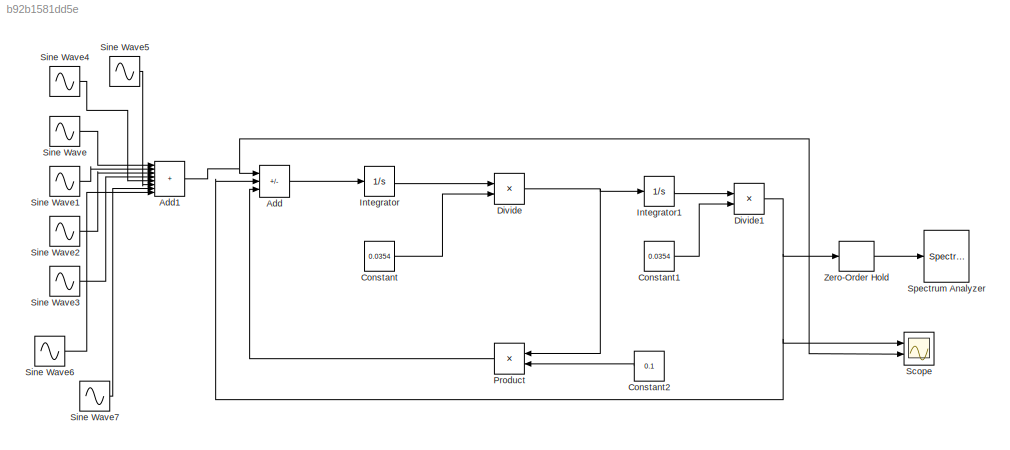
MODEL slx_b92b1581dd5e
KIND model
CONFIG AbsTol = auto
CONFIG EnableMultiTasking = off
CONFIG FixedStep = auto
CONFIG MaxStep = auto
CONFIG MinStep = auto
CONFIG RelTol = 1e-3
CONFIG SampleTimeConstraint = Unconstrained
CONFIG SolverName = VariableStepAuto
CONFIG StartTime = 0.0
CONFIG StopTime = 3
BLOCK [Sum] Add
  IconShape = rectangular
  Inputs = +--
  Ports = [3, 1]
BLOCK [Sum] Add1
  IconShape = rectangular
  Inputs = ++++++++
  Ports = [8, 1]
BLOCK [Constant] Constant
  Value = 0.0354
BLOCK [Constant] Constant1
  Value = 0.0354
BLOCK [Constant] Constant2
  Value = 0.1
BLOCK [Product] Divide
  Inputs = */
  Ports = [2, 1]
BLOCK [Product] Divide1
  Inputs = */
  Ports = [2, 1]
BLOCK [Integrator] Integrator
  Ports = [1, 1]
BLOCK [Integrator] Integrator1
  Ports = [1, 1]
BLOCK [Product] Product
  Ports = [2, 1]
BLOCK [Scope] Scope
  Floating = off
  NumInputPorts = 2
  Ports = [2]
  ScopeSpecificationString = Simulink.scopes.TimeScopeBlockCfg('CurrentConfiguration', extmgr.ConfigurationSet(extmgr.Configuration('Core','General UI',true),extmgr.Configuration('Core','Source UI',true),extmgr.Configuration('Sources','WiredSimulink',true),extmgr.Configuration('Visuals','Time Domain',true,'SerializedDisplays',{struct('MinYLimReal','-1.25','MaxYLimReal','1.25','YLabelReal','','MinYLimMag','0.00000','MaxYLimMag...<+1706ch>
BLOCK [Sin] Sine Wave
  Amplitude = 4/(pi*1)
  Frequency = 64*pi
  Ports = [0, 1]
  SampleTime = 0
BLOCK [Sin] Sine Wave1
  Amplitude = 4/(pi*3)
  Frequency = 192*pi
  Ports = [0, 1]
  SampleTime = 0
BLOCK [Sin] Sine Wave2
  Amplitude = 4/(pi*5)
  Frequency = 320*pi
  Ports = [0, 1]
  SampleTime = 0
BLOCK [Sin] Sine Wave3
  Amplitude = 4/(pi*7)
  Frequency = 448*pi
  Ports = [0, 1]
  SampleTime = 0
BLOCK [Sin] Sine Wave4
  Amplitude = 4/(pi*11)
  Frequency = 704*pi
  Ports = [0, 1]
  SampleTime = 0
BLOCK [Sin] Sine Wave5
  Amplitude = 4/(pi*9)
  Frequency = 576*pi
  Ports = [0, 1]
  SampleTime = 0
BLOCK [Sin] Sine Wave6
  Amplitude = 4/(pi*13)
  Frequency = 64*pi*13
  Ports = [0, 1]
  SampleTime = 0
BLOCK [Sin] Sine Wave7
  Amplitude = 4/(pi*15)
  Frequency = 64*pi*15
  Ports = [0, 1]
  SampleTime = 0
BLOCK [SpectrumAnalyzer] Spectrum Analyzer
  Ports = [1]
  ScopeSpecificationString = spbscopes.SpectrumAnalyzerBlockCfg('CurrentConfiguration', extmgr.ConfigurationSet(extmgr.Configuration('Core','General UI',true),extmgr.Configuration('Core','Source UI',true),extmgr.Configuration('Sources','WiredSimulink',true),extmgr.Configuration('Visuals','Spectrum',true,'AxesProperties',struct('Color',{[0 0 0],[0 0 0]},'XColor',{[0.686274509803922 0.686274509803922 0.686274509803922],[0.68627...<+1807ch>
BLOCK [ZeroOrderHold] Zero-Order Hold
  SampleTime = 2^-10
NET Add1:1 -> Add:1, Scope:2
LINE Add:1 -> Integrator:1
LINE Constant1:1 -> Divide1:2
LINE Constant2:1 -> Product:2
LINE Constant:1 -> Divide:2
NET Divide1:1 -> Add:2, Scope:1, Zero-Order Hold:1
NET Divide:1 -> Integrator1:1, Product:1
LINE Integrator1:1 -> Divide1:1
LINE Integrator:1 -> Divide:1
LINE Product:1 -> Add:3
LINE Sine Wave1:1 -> Add1:2
LINE Sine Wave2:1 -> Add1:3
LINE Sine Wave3:1 -> Add1:4
LINE Sine Wave4:1 -> Add1:5
LINE Sine Wave5:1 -> Add1:6
LINE Sine Wave6:1 -> Add1:8
LINE Sine Wave7:1 -> Add1:7
LINE Sine Wave:1 -> Add1:1
LINE Zero-Order Hold:1 -> Spectrum Analyzer:1
note: NET lines group one-source signal fan-out (src -> all destinations, sorted); 1:1 wires keep LINE
